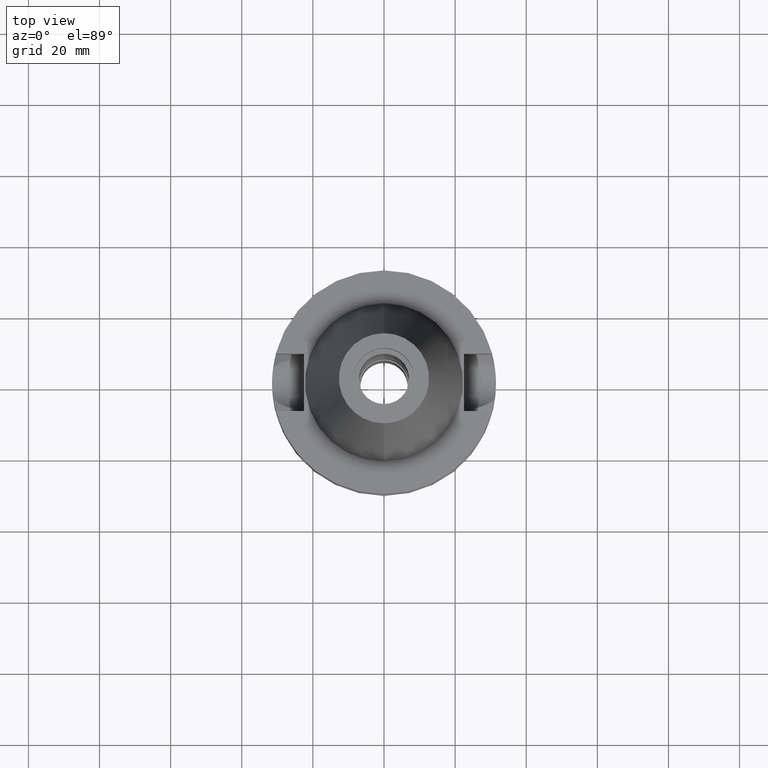
[diagram: clean part render]
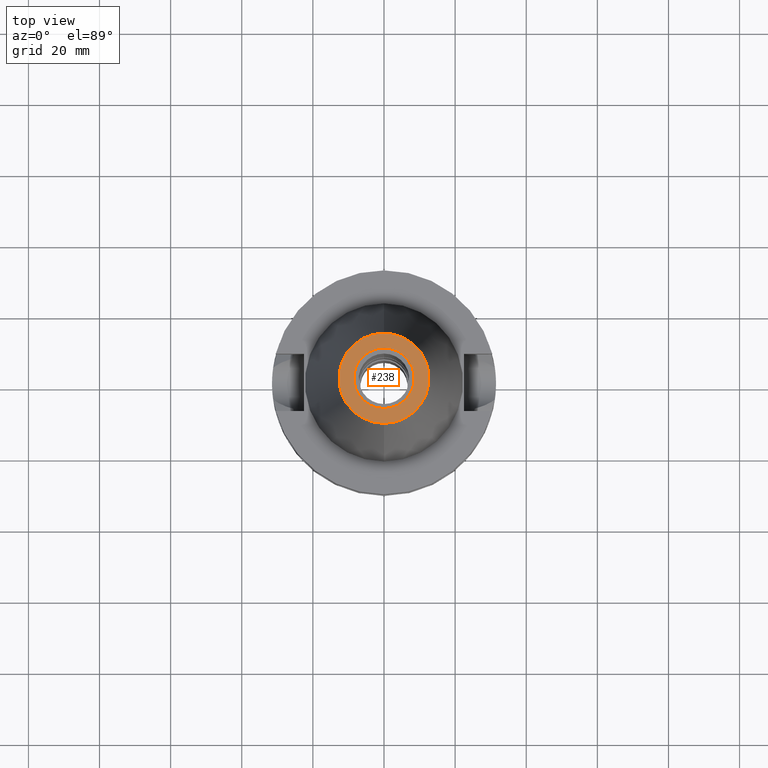
[diagram: same view with one face highlighted and labeled with its STEP entity id]
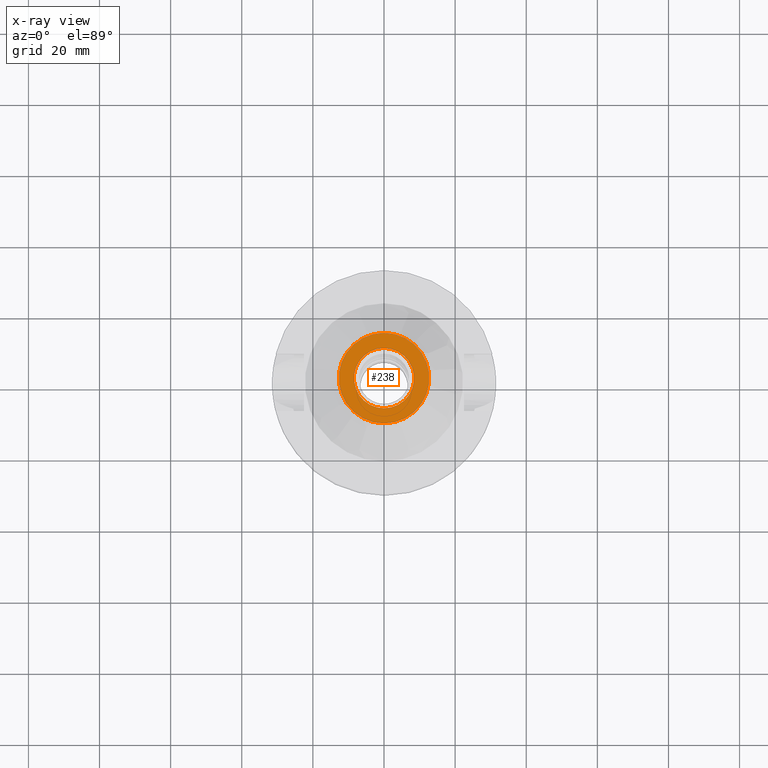
[diagram: x-ray of the same camera — body ghosted, the highlighted face saturated]
A machine part, top view. The second image highlights one B-rep face of the part: STEP entity #238.
The next image is the same camera in x-ray: the body ghosted, the highlighted face saturated — about 0% of this face is hidden behind the body in this view.
In plain terms, the highlighted planar face has unit normal (0, 0, -1).
Its self-contained STEP definition (entity closure, byte-faithful):
#46 = EDGE_CURVE ( 'NONE', #2732, #2387, #2717, .T. ) ;
#50 = CARTESIAN_POINT ( 'NONE',  ( 0.0000000000000000000, 2.134498138573999781E-14, 65.40000000000000568 ) ) ;
#61 = DIRECTION ( 'NONE',  ( 0.0000000000000000000, 0.0000000000000000000, 1.000000000000000000 ) ) ;
#143 = ORIENTED_EDGE ( 'NONE', *, *, #654, .F. ) ;
#169 = CIRCLE ( 'NONE', #1945, 12.68766899429999917 ) ;
#238 = ADVANCED_FACE ( 'NONE', ( #2603, #1372 ), #3061, .F. ) ;
#305 = CARTESIAN_POINT ( 'NONE',  ( 0.0000000000000000000, 1.625106302469000024E-14, 65.40000000000000568 ) ) ;
#369 = DIRECTION ( 'NONE',  ( 0.0000000000000000000, -1.000000000000000000, 0.0000000000000000000 ) ) ;
#371 = DIRECTION ( 'NONE',  ( 0.0000000000000000000, -1.000000000000000000, 0.0000000000000000000 ) ) ;
#405 = CARTESIAN_POINT ( 'NONE',  ( 0.0000000000000000000, 2.025565805790000122E-14, 65.40000000000000568 ) ) ;
#540 = CARTESIAN_POINT ( 'NONE',  ( 0.0000000000000000000, -8.500000000000000000, 65.40000000000000568 ) ) ;
#555 = DIRECTION ( 'NONE',  ( 0.0000000000000000000, 0.0000000000000000000, 1.000000000000000000 ) ) ;
#558 = ORIENTED_EDGE ( 'NONE', *, *, #1815, .F. ) ;
#654 = EDGE_CURVE ( 'NONE', #2033, #1111, #2455, .T. ) ;
#1011 = DIRECTION ( 'NONE',  ( 0.0000000000000000000, -1.000000000000000000, 0.0000000000000000000 ) ) ;
#1084 = CARTESIAN_POINT ( 'NONE',  ( 0.0000000000000000000, 1.625106302469000024E-14, 65.40000000000000568 ) ) ;
#1111 = VERTEX_POINT ( 'NONE', #2973 ) ;
#1115 = CIRCLE ( 'NONE', #2145, 8.500000000000000000 ) ;
#1135 = ORIENTED_EDGE ( 'NONE', *, *, #46, .F. ) ;
#1176 = EDGE_LOOP ( 'NONE', ( #2970, #1135 ) ) ;
#1302 = DIRECTION ( 'NONE',  ( 0.0000000000000000000, 1.000000000000000000, 0.0000000000000000000 ) ) ;
#1327 = CARTESIAN_POINT ( 'NONE',  ( 0.0000000000000000000, 8.500000000000000000, 65.40000000000000568 ) ) ;
#1372 = FACE_BOUND ( 'NONE', #1176, .T. ) ;
#1596 = DIRECTION ( 'NONE',  ( 0.0000000000000000000, 0.0000000000000000000, -1.000000000000000000 ) ) ;
#1815 = EDGE_CURVE ( 'NONE', #1111, #2033, #169, .T. ) ;
#1907 = AXIS2_PLACEMENT_3D ( 'NONE', #405, #2358, #371 ) ;
#1945 = AXIS2_PLACEMENT_3D ( 'NONE', #1084, #1596, #369 ) ;
#2033 = VERTEX_POINT ( 'NONE', #2643 ) ;
#2145 = AXIS2_PLACEMENT_3D ( 'NONE', #50, #555, #2949 ) ;
#2195 = EDGE_CURVE ( 'NONE', #2387, #2732, #1115, .T. ) ;
#2233 = CARTESIAN_POINT ( 'NONE',  ( 0.0000000000000000000, 2.134498138573999781E-14, 65.40000000000000568 ) ) ;
#2358 = DIRECTION ( 'NONE',  ( 0.0000000000000000000, 0.0000000000000000000, -1.000000000000000000 ) ) ;
#2387 = VERTEX_POINT ( 'NONE', #1327 ) ;
#2455 = CIRCLE ( 'NONE', #2755, 12.68766899429999917 ) ;
#2603 = FACE_OUTER_BOUND ( 'NONE', #3126, .T. ) ;
#2643 = CARTESIAN_POINT ( 'NONE',  ( 0.0000000000000000000, 12.68766899429999917, 65.40000000000000568 ) ) ;
#2717 = CIRCLE ( 'NONE', #3081, 8.500000000000000000 ) ;
#2732 = VERTEX_POINT ( 'NONE', #540 ) ;
#2755 = AXIS2_PLACEMENT_3D ( 'NONE', #305, #2977, #1302 ) ;
#2949 = DIRECTION ( 'NONE',  ( 0.0000000000000000000, 1.000000000000000000, 0.0000000000000000000 ) ) ;
#2970 = ORIENTED_EDGE ( 'NONE', *, *, #2195, .F. ) ;
#2973 = CARTESIAN_POINT ( 'NONE',  ( 0.0000000000000000000, -12.68766899429999917, 65.40000000000000568 ) ) ;
#2977 = DIRECTION ( 'NONE',  ( 0.0000000000000000000, 0.0000000000000000000, -1.000000000000000000 ) ) ;
#3061 = PLANE ( 'NONE',  #1907 ) ;
#3081 = AXIS2_PLACEMENT_3D ( 'NONE', #2233, #61, #1011 ) ;
#3126 = EDGE_LOOP ( 'NONE', ( #143, #558 ) ) ;